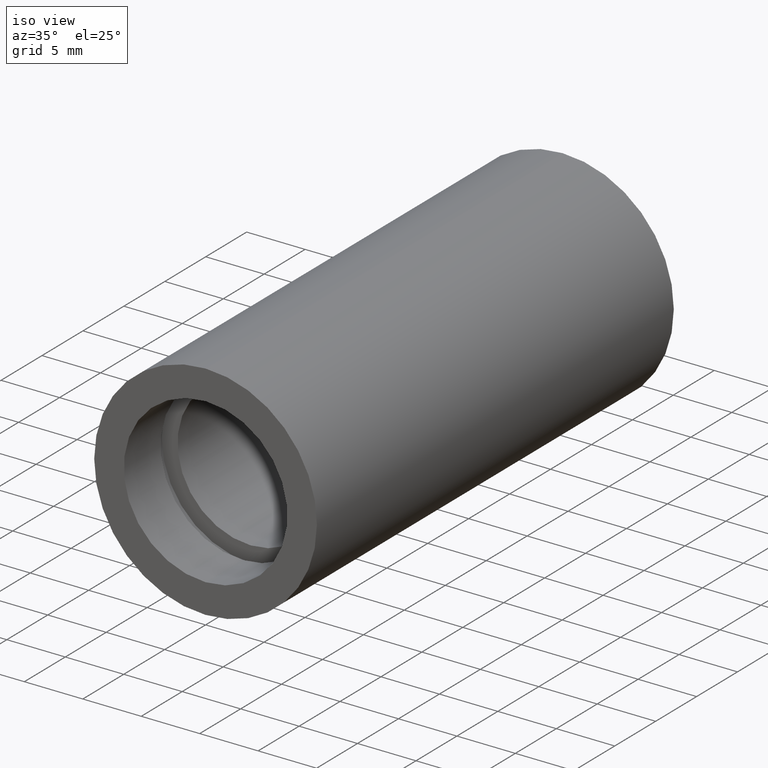
[diagram: clean part render]
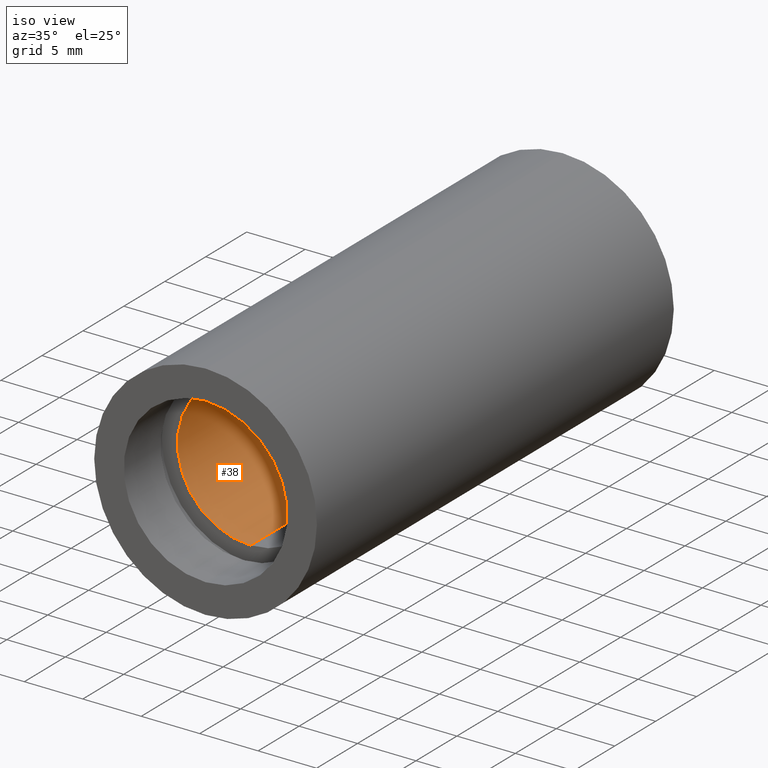
[diagram: same view with one face highlighted and labeled with its STEP entity id]
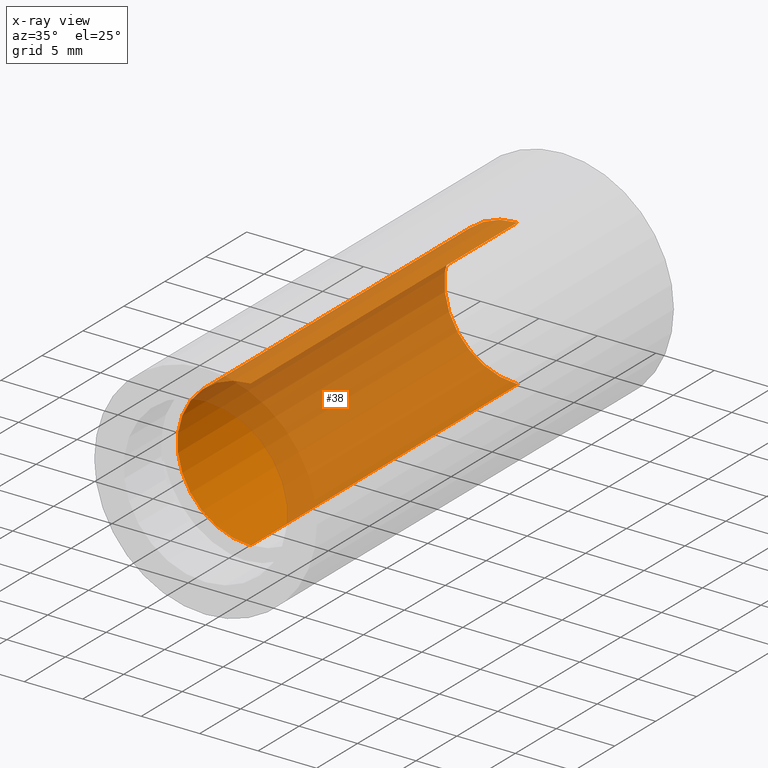
[diagram: x-ray of the same camera — body ghosted, the highlighted face saturated]
A machine part, iso view. The second image highlights one B-rep face of the part: STEP entity #38.
The next image is the same camera in x-ray: the body ghosted, the highlighted face saturated — about 79% of this face is hidden behind the body in this view.
In plain terms, the highlighted cylindrical surface (partial cylindrical patch) has radius 6.25 mm, axis along (-0, 1, -0).
Its self-contained STEP definition (entity closure, byte-faithful):
#5 = DIRECTION ( 'NONE',  ( 0.0000000000000000000, 0.0000000000000000000, 1.000000000000000000 ) ) ;
#18 = DIRECTION ( 'NONE',  ( -0.0000000000000000000, 1.000000000000000000, -0.0000000000000000000 ) ) ;
#25 = ORIENTED_EDGE ( 'NONE', *, *, #277, .F. ) ;
#38 = ADVANCED_FACE ( 'NONE', ( #250 ), #566, .F. ) ;
#51 = CARTESIAN_POINT ( 'NONE',  ( 0.0000000000000000000, 38.09999999999999400, 0.0000000000000000000 ) ) ;
#56 = AXIS2_PLACEMENT_3D ( 'NONE', #467, #612, #5 ) ;
#62 = EDGE_CURVE ( 'NONE', #540, #262, #610, .T. ) ;
#96 = CARTESIAN_POINT ( 'NONE',  ( 7.654042494670981300E-016, 38.09999999999999400, -6.250000000000019500 ) ) ;
#100 = CARTESIAN_POINT ( 'NONE',  ( 7.654042494670981300E-016, 5.499999999999976900, -6.250000000000019500 ) ) ;
#107 = CARTESIAN_POINT ( 'NONE',  ( 0.0000000000000000000, 38.09999999999999400, 6.250000000000019500 ) ) ;
#157 = VERTEX_POINT ( 'NONE', #444 ) ;
#171 = CARTESIAN_POINT ( 'NONE',  ( 7.654042494670981300E-016, 161.3761669434274500, -6.250000000000019500 ) ) ;
#181 = CARTESIAN_POINT ( 'NONE',  ( 0.0000000000000000000, 161.3761669434274500, 6.250000000000019500 ) ) ;
#193 = ORIENTED_EDGE ( 'NONE', *, *, #621, .F. ) ;
#248 = AXIS2_PLACEMENT_3D ( 'NONE', #253, #18, #451 ) ;
#250 = FACE_OUTER_BOUND ( 'NONE', #297, .T. ) ;
#253 = CARTESIAN_POINT ( 'NONE',  ( 0.0000000000000000000, 5.499999999999976900, 0.0000000000000000000 ) ) ;
#262 = VERTEX_POINT ( 'NONE', #107 ) ;
#277 = EDGE_CURVE ( 'NONE', #553, #157, #349, .T. ) ;
#297 = EDGE_LOOP ( 'NONE', ( #25, #304, #608, #193 ) ) ;
#304 = ORIENTED_EDGE ( 'NONE', *, *, #373, .T. ) ;
#322 = LINE ( 'NONE', #171, #617 ) ;
#327 = LINE ( 'NONE', #181, #538 ) ;
#349 = CIRCLE ( 'NONE', #248, 6.250000000000019500 ) ;
#363 = DIRECTION ( 'NONE',  ( -0.0000000000000000000, 1.000000000000000000, -0.0000000000000000000 ) ) ;
#373 = EDGE_CURVE ( 'NONE', #553, #540, #322, .T. ) ;
#379 = DIRECTION ( 'NONE',  ( -0.0000000000000000000, 1.000000000000000000, -0.0000000000000000000 ) ) ;
#383 = DIRECTION ( 'NONE',  ( 0.0000000000000000000, 0.0000000000000000000, 1.000000000000000000 ) ) ;
#444 = CARTESIAN_POINT ( 'NONE',  ( 0.0000000000000000000, 5.499999999999976900, 6.250000000000019500 ) ) ;
#451 = DIRECTION ( 'NONE',  ( 0.0000000000000000000, 0.0000000000000000000, 1.000000000000000000 ) ) ;
#467 = CARTESIAN_POINT ( 'NONE',  ( 0.0000000000000000000, 161.3761669434274500, 0.0000000000000000000 ) ) ;
#527 = DIRECTION ( 'NONE',  ( -0.0000000000000000000, 1.000000000000000000, -0.0000000000000000000 ) ) ;
#538 = VECTOR ( 'NONE', #527, 1000.000000000000000 ) ;
#540 = VERTEX_POINT ( 'NONE', #96 ) ;
#553 = VERTEX_POINT ( 'NONE', #100 ) ;
#566 = CYLINDRICAL_SURFACE ( 'NONE', #56, 6.250000000000019500 ) ;
#608 = ORIENTED_EDGE ( 'NONE', *, *, #62, .T. ) ;
#610 = CIRCLE ( 'NONE', #618, 6.250000000000019500 ) ;
#612 = DIRECTION ( 'NONE',  ( -0.0000000000000000000, 1.000000000000000000, -0.0000000000000000000 ) ) ;
#617 = VECTOR ( 'NONE', #363, 1000.000000000000000 ) ;
#618 = AXIS2_PLACEMENT_3D ( 'NONE', #51, #379, #383 ) ;
#621 = EDGE_CURVE ( 'NONE', #157, #262, #327, .T. ) ;